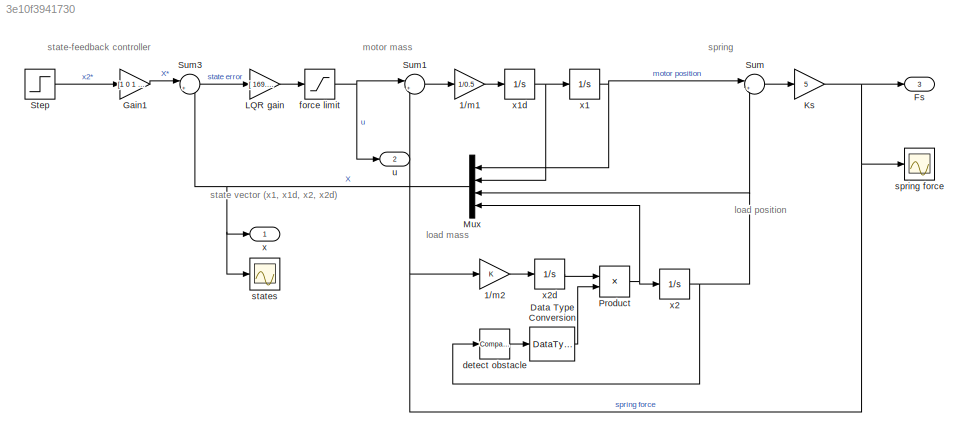
MODEL slx_3e10f3941730
KIND model
CONFIG AbsTol = auto
CONFIG EnableMultiTasking = on
CONFIG FixedStep = auto
CONFIG MaxStep = auto
CONFIG MinStep = auto
CONFIG RelTol = 1e-3
CONFIG SampleTimeConstraint = Unconstrained
CONFIG SolverName = VariableStepAuto
CONFIG StartTime = 0.0
CONFIG StopTime = 5
BLOCK [Gain] 1//m1
  Gain = 1/0.5
BLOCK [Gain] 1//m2
BLOCK [DataTypeConversion] Data Type Conversion
  OutDataTypeStr = double
  RndMeth = Floor
  SaturateOnIntegerOverflow = off
BLOCK [Outport] Fs
  Port = 3
BLOCK [Gain] Gain1
  Gain = [1 0 1 0]
BLOCK [Gain] Ks
  Gain = 5
BLOCK [Gain] LQR gain
  Gain = [  169.9563   62.9010  -19.9563   71.1092\n]
  Multiplication = Matrix(K*u)
BLOCK [Mux] Mux
  DisplayOption = bar
  Ports = [4, 1]
BLOCK [Product] Product
  Ports = [2, 1]
BLOCK [Step] Step
  SampleTime = 0
BLOCK [Sum] Sum
  Inputs = |+-
  Ports = [2, 1]
BLOCK [Sum] Sum1
  Inputs = |+-
  Ports = [2, 1]
BLOCK [Sum] Sum3
  Inputs = |+-
  Ports = [2, 1]
BLOCK [Reference] detect obstacle  REF=simulink/Logic and Bit
Operations/Compare
To Constant
  Ports = [1, 1]
  SourceBlock = simulink/Logic and Bit\nOperations/Compare\nTo Constant
  SourceProductBaseCode = SL
  SourceType = Compare To Constant
BLOCK [Saturate] force limit
  LowerLimit = -2
  UpperLimit = 2
BLOCK [Scope] spring force
  Floating = off
  NumInputPorts = 1
  Ports = [1]
  ScopeSpecificationString = Simulink.scopes.TimeScopeBlockCfg('CurrentConfiguration', extmgr.ConfigurationSet(extmgr.Configuration('Core','General UI',true),extmgr.Configuration('Core','Source UI',true),extmgr.Configuration('Sources','WiredSimulink',true,'DataLoggingVariableName','ScopeData2'),extmgr.Configuration('Visuals','Time Domain',true,'SerializedDisplays',{struct('MinYLimReal','-1.76147','MaxYLimReal','2.3062','YLabe...<+1422ch>
BLOCK [Scope] states
  Floating = off
  NumInputPorts = 1
  Ports = [1]
  ScopeSpecificationString = Simulink.scopes.TimeScopeBlockCfg('CurrentConfiguration', extmgr.ConfigurationSet(extmgr.Configuration('Core','General UI',true),extmgr.Configuration('Core','Source UI',true),extmgr.Configuration('Sources','WiredSimulink',true,'DataLoggingVariableName','ScopeData3'),extmgr.Configuration('Visuals','Time Domain',true,'SerializedDisplays',{struct('MinYLimReal','-0.25051','MaxYLimReal','1.42305','YLab...<+1434ch>
BLOCK [Outport] u
  Port = 2
BLOCK [Outport] x
BLOCK [Integrator] x1
  Ports = [1, 1]
BLOCK [Integrator] x1d
  Ports = [1, 1]
BLOCK [Integrator] x2
  Ports = [1, 1]
BLOCK [Integrator] x2d
  Ports = [1, 1]
ANNOTATION (root): load mass
ANNOTATION (root): load position
ANNOTATION (root): motor mass
ANNOTATION (root): spring
ANNOTATION (root): state vector (x1, x1d, x2, x2d)
ANNOTATION (root): state-feedback controller
LINE 1//m1:1 -> x1d:1
LINE 1//m2:1 -> x2d:1
LINE Data Type Conversion:1 -> Product:2
LINE Gain1:1 -> Sum3:1
NET Ks:1 -> 1//m2:1, Fs:1, Sum1:2, spring force:1
LINE LQR gain:1 -> force limit:1
NET Mux:1 -> Sum3:2, states:1, x:1
NET Product:1 -> Mux:4, x2:1
LINE Step:1 -> Gain1:1
LINE Sum1:1 -> 1//m1:1
LINE Sum3:1 -> LQR gain:1
LINE Sum:1 -> Ks:1
LINE detect obstacle:1 -> Data Type Conversion:1
NET force limit:1 -> Sum1:1, u:1
NET x1:1 -> Mux:1, Sum:1
NET x1d:1 -> Mux:2, x1:1
NET x2:1 -> Mux:3, Sum:2, detect obstacle:1
LINE x2d:1 -> Product:1
note: NET lines group one-source signal fan-out (src -> all destinations, sorted); 1:1 wires keep LINE
